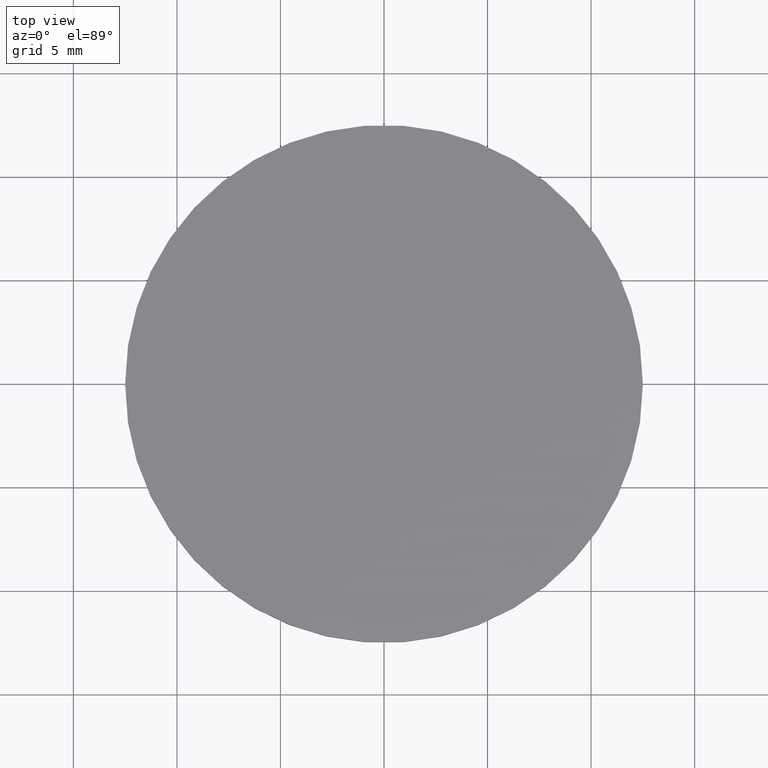
[diagram: clean part render]
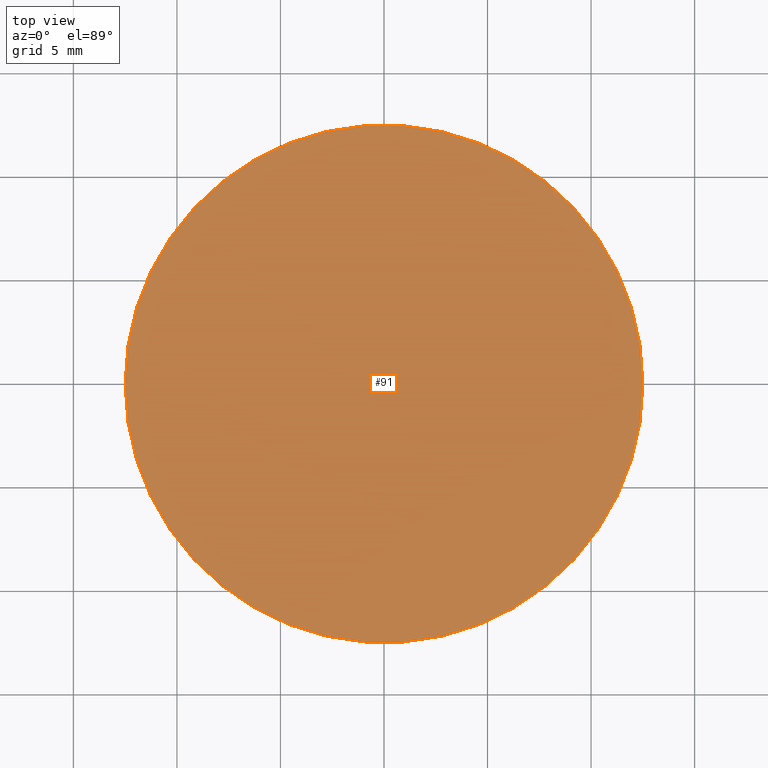
[diagram: same view with one face highlighted and labeled with its STEP entity id]
A machine part, top view. The second image highlights one B-rep face of the part: STEP entity #91.
In plain terms, the highlighted planar face has unit normal (0, 0, 1).
Its self-contained STEP definition (entity closure, byte-faithful):
#1 = DIRECTION ( 'NONE',  ( 0.0000000000000000000, 0.0000000000000000000, 1.000000000000000000 ) ) ;
#4 = CARTESIAN_POINT ( 'NONE',  ( -12.50000000000000000, 0.0000000000000000000, 1.050000000000000000 ) ) ;
#5 = PLANE ( 'NONE',  #128 ) ;
#8 = EDGE_CURVE ( 'NONE', #93, #102, #105, .T. ) ;
#24 = AXIS2_PLACEMENT_3D ( 'NONE', #61, #78, #101 ) ;
#34 = ORIENTED_EDGE ( 'NONE', *, *, #68, .T. ) ;
#49 = CARTESIAN_POINT ( 'NONE',  ( 0.0000000000000000000, 0.0000000000000000000, 1.050000000000000000 ) ) ;
#61 = CARTESIAN_POINT ( 'NONE',  ( 0.0000000000000000000, 0.0000000000000000000, 1.050000000000000000 ) ) ;
#68 = EDGE_CURVE ( 'NONE', #102, #93, #98, .T. ) ;
#77 = EDGE_LOOP ( 'NONE', ( #118, #34 ) ) ;
#78 = DIRECTION ( 'NONE',  ( 0.0000000000000000000, 0.0000000000000000000, 1.000000000000000000 ) ) ;
#85 = AXIS2_PLACEMENT_3D ( 'NONE', #49, #1, #86 ) ;
#86 = DIRECTION ( 'NONE',  ( 1.000000000000000000, 0.0000000000000000000, 0.0000000000000000000 ) ) ;
#87 = DIRECTION ( 'NONE',  ( 1.000000000000000000, 0.0000000000000000000, -0.0000000000000000000 ) ) ;
#91 = ADVANCED_FACE ( 'NONE', ( #119 ), #5, .T. ) ;
#93 = VERTEX_POINT ( 'NONE', #4 ) ;
#98 = CIRCLE ( 'NONE', #24, 12.50000000000000000 ) ;
#101 = DIRECTION ( 'NONE',  ( 1.000000000000000000, 0.0000000000000000000, 0.0000000000000000000 ) ) ;
#102 = VERTEX_POINT ( 'NONE', #130 ) ;
#105 = CIRCLE ( 'NONE', #85, 12.50000000000000000 ) ;
#118 = ORIENTED_EDGE ( 'NONE', *, *, #8, .T. ) ;
#119 = FACE_OUTER_BOUND ( 'NONE', #77, .T. ) ;
#121 = DIRECTION ( 'NONE',  ( 0.0000000000000000000, 0.0000000000000000000, 1.000000000000000000 ) ) ;
#128 = AXIS2_PLACEMENT_3D ( 'NONE', #132, #121, #87 ) ;
#130 = CARTESIAN_POINT ( 'NONE',  ( 12.50000000000000000, 1.530808498934191500E-015, 1.050000000000000000 ) ) ;
#132 = CARTESIAN_POINT ( 'NONE',  ( 0.0000000000000000000, 0.0000000000000000000, 1.050000000000000000 ) ) ;